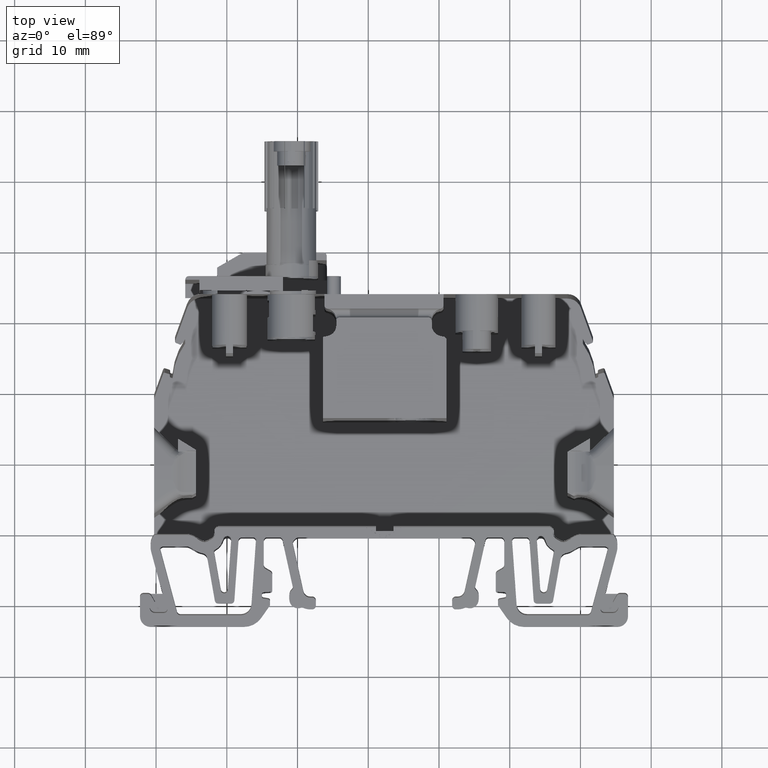
[diagram: clean part render]
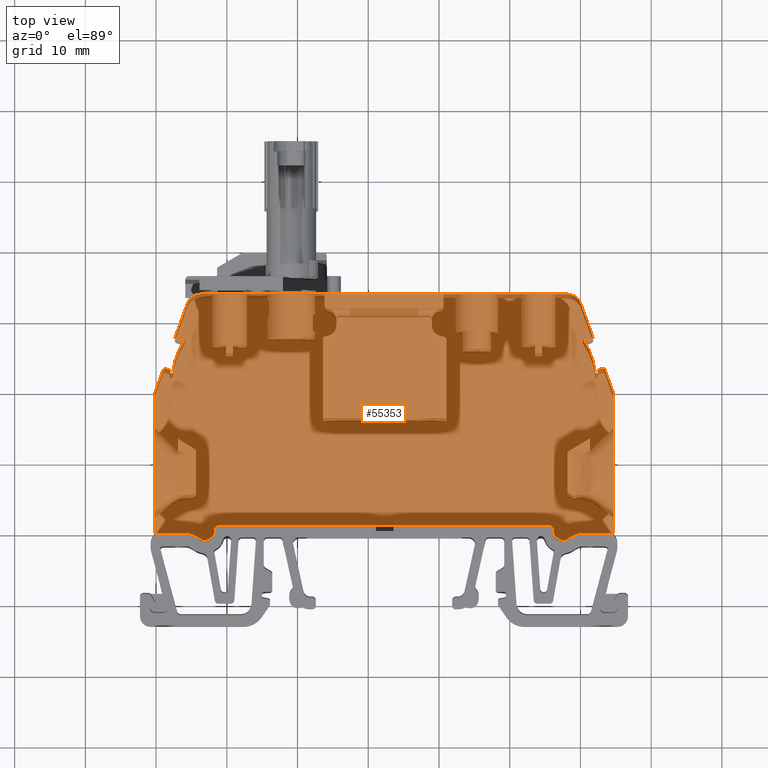
[diagram: same view with one face highlighted and labeled with its STEP entity id]
A machine part, top view. The second image highlights one B-rep face of the part: STEP entity #55353.
In plain terms, the highlighted planar face has unit normal (0, 0, -1).
Its self-contained STEP definition (entity closure, byte-faithful):
#7059 = ORIENTED_EDGE ( 'NONE', *, *, #56412, .T. ) ;
#7060 = ORIENTED_EDGE ( 'NONE', *, *, #56320, .T. ) ;
#7062 = ORIENTED_EDGE ( 'NONE', *, *, #56421, .T. ) ;
#7064 = ORIENTED_EDGE ( 'NONE', *, *, #56339, .T. ) ;
#7066 = ORIENTED_EDGE ( 'NONE', *, *, #56348, .T. ) ;
#7067 = ORIENTED_EDGE ( 'NONE', *, *, #56385, .F. ) ;
#7073 = ORIENTED_EDGE ( 'NONE', *, *, #56375, .T. ) ;
#7077 = ORIENTED_EDGE ( 'NONE', *, *, #56380, .F. ) ;
#7081 = ORIENTED_EDGE ( 'NONE', *, *, #56054, .T. ) ;
#7082 = ORIENTED_EDGE ( 'NONE', *, *, #56011, .T. ) ;
#7085 = ORIENTED_EDGE ( 'NONE', *, *, #56361, .T. ) ;
#7087 = ORIENTED_EDGE ( 'NONE', *, *, #55777, .F. ) ;
#7088 = ORIENTED_EDGE ( 'NONE', *, *, #56040, .T. ) ;
#7089 = ORIENTED_EDGE ( 'NONE', *, *, #56341, .T. ) ;
#7091 = ORIENTED_EDGE ( 'NONE', *, *, #56416, .T. ) ;
#7092 = ORIENTED_EDGE ( 'NONE', *, *, #55696, .T. ) ;
#7104 = ORIENTED_EDGE ( 'NONE', *, *, #56378, .T. ) ;
#7107 = ORIENTED_EDGE ( 'NONE', *, *, #56370, .T. ) ;
#7113 = ORIENTED_EDGE ( 'NONE', *, *, #56066, .T. ) ;
#7116 = ORIENTED_EDGE ( 'NONE', *, *, #56413, .T. ) ;
#7118 = ORIENTED_EDGE ( 'NONE', *, *, #56347, .T. ) ;
#7120 = ORIENTED_EDGE ( 'NONE', *, *, #55743, .T. ) ;
#7125 = ORIENTED_EDGE ( 'NONE', *, *, #56307, .F. ) ;
#7126 = ORIENTED_EDGE ( 'NONE', *, *, #56417, .T. ) ;
#7128 = ORIENTED_EDGE ( 'NONE', *, *, #56305, .T. ) ;
#7130 = ORIENTED_EDGE ( 'NONE', *, *, #56366, .T. ) ;
#7133 = ORIENTED_EDGE ( 'NONE', *, *, #56296, .F. ) ;
#7134 = ORIENTED_EDGE ( 'NONE', *, *, #56410, .F. ) ;
#7135 = ORIENTED_EDGE ( 'NONE', *, *, #56404, .T. ) ;
#7137 = ORIENTED_EDGE ( 'NONE', *, *, #56365, .T. ) ;
#7140 = ORIENTED_EDGE ( 'NONE', *, *, #56338, .T. ) ;
#7147 = ORIENTED_EDGE ( 'NONE', *, *, #56403, .T. ) ;
#7153 = ORIENTED_EDGE ( 'NONE', *, *, #56304, .T. ) ;
#7158 = ORIENTED_EDGE ( 'NONE', *, *, #55980, .T. ) ;
#7159 = ORIENTED_EDGE ( 'NONE', *, *, #56418, .T. ) ;
#7163 = ORIENTED_EDGE ( 'NONE', *, *, #56407, .T. ) ;
#7165 = ORIENTED_EDGE ( 'NONE', *, *, #55985, .T. ) ;
#7166 = ORIENTED_EDGE ( 'NONE', *, *, #56039, .T. ) ;
#7172 = ORIENTED_EDGE ( 'NONE', *, *, #56325, .F. ) ;
#7173 = ORIENTED_EDGE ( 'NONE', *, *, #56374, .T. ) ;
#7176 = ORIENTED_EDGE ( 'NONE', *, *, #56297, .T. ) ;
#7187 = ORIENTED_EDGE ( 'NONE', *, *, #56295, .T. ) ;
#7188 = ORIENTED_EDGE ( 'NONE', *, *, #56402, .T. ) ;
#7192 = ORIENTED_EDGE ( 'NONE', *, *, #56377, .T. ) ;
#7196 = ORIENTED_EDGE ( 'NONE', *, *, #56400, .F. ) ;
#7203 = ORIENTED_EDGE ( 'NONE', *, *, #56093, .T. ) ;
#7206 = ORIENTED_EDGE ( 'NONE', *, *, #56405, .T. ) ;
#7210 = ORIENTED_EDGE ( 'NONE', *, *, #55977, .T. ) ;
#7230 = ORIENTED_EDGE ( 'NONE', *, *, #56299, .T. ) ;
#7231 = ORIENTED_EDGE ( 'NONE', *, *, #56035, .T. ) ;
#7234 = ORIENTED_EDGE ( 'NONE', *, *, #56388, .T. ) ;
#10559 = VERTEX_POINT ( 'NONE', #46858 ) ;
#10574 = VERTEX_POINT ( 'NONE', #46841 ) ;
#10585 = VERTEX_POINT ( 'NONE', #46873 ) ;
#10627 = VERTEX_POINT ( 'NONE', #46846 ) ;
#10634 = VERTEX_POINT ( 'NONE', #46845 ) ;
#10638 = VERTEX_POINT ( 'NONE', #46843 ) ;
#10646 = VERTEX_POINT ( 'NONE', #46887 ) ;
#10649 = VERTEX_POINT ( 'NONE', #46814 ) ;
#10652 = VERTEX_POINT ( 'NONE', #46878 ) ;
#10655 = VERTEX_POINT ( 'NONE', #46859 ) ;
#10692 = VERTEX_POINT ( 'NONE', #46885 ) ;
#10700 = VERTEX_POINT ( 'NONE', #46888 ) ;
#10712 = VERTEX_POINT ( 'NONE', #46803 ) ;
#10715 = VERTEX_POINT ( 'NONE', #46889 ) ;
#10737 = VERTEX_POINT ( 'NONE', #46810 ) ;
#10750 = VERTEX_POINT ( 'NONE', #46863 ) ;
#10757 = VERTEX_POINT ( 'NONE', #46834 ) ;
#10761 = VERTEX_POINT ( 'NONE', #46805 ) ;
#10776 = VERTEX_POINT ( 'NONE', #46801 ) ;
#10787 = VERTEX_POINT ( 'NONE', #46819 ) ;
#10806 = VERTEX_POINT ( 'NONE', #46973 ) ;
#10820 = VERTEX_POINT ( 'NONE', #46944 ) ;
#10832 = VERTEX_POINT ( 'NONE', #46916 ) ;
#10869 = VERTEX_POINT ( 'NONE', #46903 ) ;
#10881 = VERTEX_POINT ( 'NONE', #46954 ) ;
#10902 = VERTEX_POINT ( 'NONE', #46906 ) ;
#10908 = VERTEX_POINT ( 'NONE', #46969 ) ;
#10918 = VERTEX_POINT ( 'NONE', #46990 ) ;
#10924 = VERTEX_POINT ( 'NONE', #46920 ) ;
#10938 = VERTEX_POINT ( 'NONE', #46924 ) ;
#10949 = VERTEX_POINT ( 'NONE', #46947 ) ;
#11040 = VERTEX_POINT ( 'NONE', #47091 ) ;
#11107 = VERTEX_POINT ( 'NONE', #47103 ) ;
#11120 = VERTEX_POINT ( 'NONE', #47069 ) ;
#16020 = ORIENTED_EDGE ( 'NONE', *, *, #56312, .T. ) ;
#16052 = ORIENTED_EDGE ( 'NONE', *, *, #56317, .T. ) ;
#16074 = ORIENTED_EDGE ( 'NONE', *, *, #56323, .T. ) ;
#16086 = ORIENTED_EDGE ( 'NONE', *, *, #56321, .F. ) ;
#16101 = ORIENTED_EDGE ( 'NONE', *, *, #56120, .T. ) ;
#16116 = ORIENTED_EDGE ( 'NONE', *, *, #56294, .T. ) ;
#16412 = CARTESIAN_POINT ( 'NONE',  ( 441.9869514033778700, 132.6659878826916100, 35.89999999999999900 ) ) ;
#16424 = CARTESIAN_POINT ( 'NONE',  ( 441.8457076652765100, 132.8586343896416800, 35.90000000000004800 ) ) ;
#16427 = CARTESIAN_POINT ( 'NONE',  ( 501.7735559405449500, 137.4437300253040300, 35.89999999999999900 ) ) ;
#16429 = CARTESIAN_POINT ( 'NONE',  ( 502.4972055876190200, 132.5112260477452000, 35.89999999999999900 ) ) ;
#16431 = CARTESIAN_POINT ( 'NONE',  ( 502.3985086091178100, 132.3702721546271400, 35.89999999999999900 ) ) ;
#16470 = CARTESIAN_POINT ( 'NONE',  ( 501.7614939674510900, 137.5121354201388900, 35.89999999999999900 ) ) ;
#16850 = CARTESIAN_POINT ( 'NONE',  ( 439.7252143684761400, 109.6896936819650000, 35.90000000000004800 ) ) ;
#16907 = CARTESIAN_POINT ( 'NONE',  ( 444.4038481496365300, 142.2237417628950900, 35.90000000000004100 ) ) ;
#16910 = CARTESIAN_POINT ( 'NONE',  ( 442.6889248981364600, 137.5121354201390000, 35.90000000000002700 ) ) ;
#16935 = CARTESIAN_POINT ( 'NONE',  ( 500.0465707159509100, 142.2237417628949700, 35.89999999999999900 ) ) ;
#16952 = CARTESIAN_POINT ( 'NONE',  ( 439.8156742988990100, 129.6181228246177000, 35.89999999999999900 ) ) ;
#16966 = CARTESIAN_POINT ( 'NONE',  ( 444.1090447752035900, 137.1677233500631700, 35.89999999999999900 ) ) ;
#16968 = CARTESIAN_POINT ( 'NONE',  ( 441.0172448106974900, 132.9193360070189800, 35.89999999999999900 ) ) ;
#16973 = CARTESIAN_POINT ( 'NONE',  ( 498.1671904468869900, 143.5396878145460000, 35.89999999999999900 ) ) ;
#16979 = CARTESIAN_POINT ( 'NONE',  ( 504.6347445666889900, 129.6181228246177600, 35.90000000000004100 ) ) ;
#16990 = CARTESIAN_POINT ( 'NONE',  ( 439.7252095132005800, 129.1050819832558100, 35.90000000000004100 ) ) ;
#16992 = CARTESIAN_POINT ( 'NONE',  ( 500.3413740903850500, 137.1677233500630000, 35.89999999999999900 ) ) ;
#16993 = CARTESIAN_POINT ( 'NONE',  ( 502.1238843569819900, 132.2703171012420000, 35.89999999999999900 ) ) ;
#17002 = CARTESIAN_POINT ( 'NONE',  ( 446.2832284187010700, 143.5396878145460300, 35.89999999999999900 ) ) ;
#17009 = CARTESIAN_POINT ( 'NONE',  ( 504.7252093648909900, 129.1050821708110200, 35.89999999999999900 ) ) ;
#17021 = CARTESIAN_POINT ( 'NONE',  ( 504.7252050386769000, 109.6896936420171900, 35.89999999999999900 ) ) ;
#17027 = CARTESIAN_POINT ( 'NONE',  ( 442.3265345086064700, 132.2703171012420000, 35.89999999999999900 ) ) ;
#17030 = CARTESIAN_POINT ( 'NONE',  ( 503.4331740548898300, 132.9193360070189000, 35.90000000000002700 ) ) ;
#36049 = CIRCLE ( 'NONE', #36051, 0.1999999999999779700 ) ;
#36051 = AXIS2_PLACEMENT_3D ( 'NONE', #92848, #92817, #92826 ) ;
#36243 = AXIS2_PLACEMENT_3D ( 'NONE', #92968, #92962, #92991 ) ;
#36257 = CIRCLE ( 'NONE', #36243, 0.1500000000000945000 ) ;
#36685 = CIRCLE ( 'NONE', #36751, 10.00000000000000900 ) ;
#36705 = CIRCLE ( 'NONE', #36715, 2.000000000000057300 ) ;
#36715 = AXIS2_PLACEMENT_3D ( 'NONE', #39559, #39535, #39527 ) ;
#36723 = VECTOR ( 'NONE', #39529, 1000.000000000000100 ) ;
#36731 = VECTOR ( 'NONE', #39582, 1000.000000000000100 ) ;
#36751 = AXIS2_PLACEMENT_3D ( 'NONE', #39688, #39655, #39661 ) ;
#36808 = VECTOR ( 'NONE', #39761, 1000.000000000000000 ) ;
#36812 = VECTOR ( 'NONE', #39754, 1000.000000000000000 ) ;
#36833 = VECTOR ( 'NONE', #39724, 1000.000000000000000 ) ;
#36835 = VECTOR ( 'NONE', #39823, 1000.000000000000100 ) ;
#36885 = AXIS2_PLACEMENT_3D ( 'NONE', #39846, #39858, #39866 ) ;
#36906 = AXIS2_PLACEMENT_3D ( 'NONE', #39881, #39904, #39906 ) ;
#36962 = CIRCLE ( 'NONE', #36906, 10.00000000000045300 ) ;
#36970 = CIRCLE ( 'NONE', #36885, 1.999999999999724200 ) ;
#37016 = VECTOR ( 'NONE', #39982, 1000.000000000000000 ) ;
#37167 = VECTOR ( 'NONE', #37970, 1000.000000000000000 ) ;
#37168 = VECTOR ( 'NONE', #38034, 1000.000000000000000 ) ;
#37176 = VECTOR ( 'NONE', #38008, 1000.000000000000000 ) ;
#37214 = VECTOR ( 'NONE', #38196, 1000.000000000000100 ) ;
#37216 = AXIS2_PLACEMENT_3D ( 'NONE', #38070, #38072, #38077 ) ;
#37219 = AXIS2_PLACEMENT_3D ( 'NONE', #38064, #38086, #38102 ) ;
#37233 = CIRCLE ( 'NONE', #37219, 2.100000000000323800 ) ;
#37235 = CIRCLE ( 'NONE', #37268, 1.499999999999890300 ) ;
#37236 = VECTOR ( 'NONE', #38197, 1000.000000000000000 ) ;
#37249 = VECTOR ( 'NONE', #38036, 1000.000000000000000 ) ;
#37250 = CIRCLE ( 'NONE', #37255, 2.100000000000656900 ) ;
#37254 = VECTOR ( 'NONE', #38230, 1000.000000000000100 ) ;
#37255 = AXIS2_PLACEMENT_3D ( 'NONE', #38029, #38047, #38042 ) ;
#37257 = VECTOR ( 'NONE', #38066, 1000.000000000000100 ) ;
#37265 = VECTOR ( 'NONE', #38134, 1000.000000000000000 ) ;
#37267 = CIRCLE ( 'NONE', #37216, 1.499999999999945800 ) ;
#37268 = AXIS2_PLACEMENT_3D ( 'NONE', #38193, #38186, #38195 ) ;
#37276 = VECTOR ( 'NONE', #38150, 1000.000000000000000 ) ;
#37277 = AXIS2_PLACEMENT_3D ( 'NONE', #38372, #38373, #38354 ) ;
#37283 = CIRCLE ( 'NONE', #37339, 0.1999999999999779700 ) ;
#37285 = AXIS2_PLACEMENT_3D ( 'NONE', #38337, #38346, #38300 ) ;
#37286 = VECTOR ( 'NONE', #38248, 1000.000000000000000 ) ;
#37287 = AXIS2_PLACEMENT_3D ( 'NONE', #38358, #38389, #38381 ) ;
#37289 = VECTOR ( 'NONE', #38395, 1000.000000000000100 ) ;
#37290 = VECTOR ( 'NONE', #38394, 1000.000000000000200 ) ;
#37292 = CIRCLE ( 'NONE', #37287, 0.1499999999997614400 ) ;
#37295 = VECTOR ( 'NONE', #38286, 999.9999999999998900 ) ;
#37296 = VECTOR ( 'NONE', #38364, 1000.000000000000100 ) ;
#37298 = CIRCLE ( 'NONE', #37306, 0.1499999999999834800 ) ;
#37300 = CIRCLE ( 'NONE', #37322, 0.1999999999997559300 ) ;
#37303 = VECTOR ( 'NONE', #38370, 1000.000000000000100 ) ;
#37304 = AXIS2_PLACEMENT_3D ( 'NONE', #38410, #38397, #38428 ) ;
#37306 = AXIS2_PLACEMENT_3D ( 'NONE', #38360, #38366, #38367 ) ;
#37307 = CIRCLE ( 'NONE', #37304, 0.2000000000001445100 ) ;
#37312 = VECTOR ( 'NONE', #38276, 1000.000000000000100 ) ;
#37318 = VECTOR ( 'NONE', #38283, 1000.000000000000100 ) ;
#37321 = VECTOR ( 'NONE', #38316, 1000.000000000000000 ) ;
#37322 = AXIS2_PLACEMENT_3D ( 'NONE', #38398, #38400, #38406 ) ;
#37324 = VECTOR ( 'NONE', #38292, 1000.000000000000200 ) ;
#37329 = CIRCLE ( 'NONE', #37277, 0.1999999999999779700 ) ;
#37334 = CIRCLE ( 'NONE', #37285, 0.1499999999997614400 ) ;
#37339 = AXIS2_PLACEMENT_3D ( 'NONE', #38379, #38347, #38375 ) ;
#37340 = VECTOR ( 'NONE', #38231, 1000.000000000000200 ) ;
#37968 = CARTESIAN_POINT ( 'NONE',  ( 448.6683679143338800, 110.7985886008791400, 35.89999999999999900 ) ) ;
#37970 = DIRECTION ( 'NONE',  ( -1.000000000000000000, 0.0000000000000000000, -0.0000000000000000000 ) ) ;
#37971 = CARTESIAN_POINT ( 'NONE',  ( 448.0248293368536000, 109.3097126272650700, 35.90000000000000600 ) ) ;
#37976 = CARTESIAN_POINT ( 'NONE',  ( 448.2254475470130000, 109.8985296204524100, 35.89999999999999900 ) ) ;
#37986 = CARTESIAN_POINT ( 'NONE',  ( 448.5122555517553500, 110.7339247430450700, 35.90000000000000600 ) ) ;
#37987 = LINE ( 'NONE', #37988, #37167 ) ;
#37988 = CARTESIAN_POINT ( 'NONE',  ( 481.7959150493850300, 109.6896936420171900, 35.89999999999999900 ) ) ;
#37990 = LINE ( 'NONE', #37976, #37176 ) ;
#37991 = CARTESIAN_POINT ( 'NONE',  ( 448.1849114839842500, 109.5873466136394800, 35.89999999999999900 ) ) ;
#37992 = CARTESIAN_POINT ( 'NONE',  ( 447.9150217157184100, 109.1999050061297300, 35.89999999999999900 ) ) ;
#37994 = CARTESIAN_POINT ( 'NONE',  ( 448.2254475470130000, 110.1985886008790200, 35.89999999999999900 ) ) ;
#37997 = CARTESIAN_POINT ( 'NONE',  ( 448.2254475470128900, 110.3556682335585900, 35.90000000000000600 ) ) ;
#37999 = CARTESIAN_POINT ( 'NONE',  ( 448.2901114048471000, 110.5117805961371600, 35.89999999999999900 ) ) ;
#38000 = CARTESIAN_POINT ( 'NONE',  ( 448.2254475470130000, 109.8985296204524100, 35.89999999999999900 ) ) ;
#38002 = CARTESIAN_POINT ( 'NONE',  ( 448.8254475470134800, 110.7985886008790000, 35.89999999999999900 ) ) ;
#38005 = CARTESIAN_POINT ( 'NONE',  ( 448.2252617162189400, 109.7376203822087200, 35.90000000000000600 ) ) ;
#38006 = CARTESIAN_POINT ( 'NONE',  ( 447.7754475470129000, 109.1191067570462300, 35.89999999999999900 ) ) ;
#38008 = DIRECTION ( 'NONE',  ( 1.850007993506319900E-013, -1.000000000000000000, -0.0000000000000000000 ) ) ;
#38027 = CARTESIAN_POINT ( 'NONE',  ( 447.1634308212534800, 108.7659734269106200, 35.90000000000000600 ) ) ;
#38029 = CARTESIAN_POINT ( 'NONE',  ( 444.3793315909559900, 107.5896937618600000, 35.89999999999999900 ) ) ;
#38031 = CARTESIAN_POINT ( 'NONE',  ( 497.9081029493523300, 108.7659757434342400, 35.90000000000000600 ) ) ;
#38032 = CARTESIAN_POINT ( 'NONE',  ( 481.7959150493850300, 110.7985886008790000, 35.89999999999999900 ) ) ;
#38033 = CARTESIAN_POINT ( 'NONE',  ( 496.6749713185751000, 109.1191067570462000, 35.90000000000005500 ) ) ;
#38034 = DIRECTION ( 'NONE',  ( -0.8660257572831008300, 0.4999993877218569800, -0.0000000000000000000 ) ) ;
#38036 = DIRECTION ( 'NONE',  ( -1.000000000000000000, 0.0000000000000000000, -0.0000000000000000000 ) ) ;
#38037 = CARTESIAN_POINT ( 'NONE',  ( 446.6926328052545000, 108.7256000827221000, 35.90000000000000600 ) ) ;
#38038 = CARTESIAN_POINT ( 'NONE',  ( 447.0131139007334000, 108.7257808765660200, 35.89999999999999900 ) ) ;
#38039 = CARTESIAN_POINT ( 'NONE',  ( 446.5426321507503100, 108.7657933854671600, 35.89999999999999900 ) ) ;
#38041 = CARTESIAN_POINT ( 'NONE',  ( 447.3028760686517000, 108.8462675888914500, 35.89999999999999900 ) ) ;
#38042 = DIRECTION ( 'NONE',  ( 1.000000000000000000, 6.608470384671483400E-015, 0.0000000000000000000 ) ) ;
#38046 = LINE ( 'NONE', #38033, #37168 ) ;
#38047 = DIRECTION ( 'NONE',  ( -0.0000000000000000000, -0.0000000000000000000, -1.000000000000000000 ) ) ;
#38051 = LINE ( 'NONE', #38032, #37249 ) ;
#38055 = CARTESIAN_POINT ( 'NONE',  ( 446.4028713854622800, 108.8462703809187500, 35.89999999999999900 ) ) ;
#38061 = CARTESIAN_POINT ( 'NONE',  ( 498.0475476677708000, 108.8462708512072200, 35.90000000000004800 ) ) ;
#38064 = CARTESIAN_POINT ( 'NONE',  ( 500.0710872746320200, 107.5896937618600000, 35.89999999999999900 ) ) ;
#38066 = DIRECTION ( 'NONE',  ( -0.8660242921353220600, -0.5000019254278069700, -0.0000000000000000000 ) ) ;
#38067 = CARTESIAN_POINT ( 'NONE',  ( 496.2653499493745800, 109.5872557200777600, 35.90000000000000600 ) ) ;
#38070 = CARTESIAN_POINT ( 'NONE',  ( 503.2252093648909900, 129.1050823633559900, 35.89999999999999900 ) ) ;
#38072 = DIRECTION ( 'NONE',  ( -0.0000000000000000000, -0.0000000000000000000, -1.000000000000000000 ) ) ;
#38073 = CARTESIAN_POINT ( 'NONE',  ( 495.7820509512544600, 110.7985886008790000, 35.90000000000000600 ) ) ;
#38077 = DIRECTION ( 'NONE',  ( 1.000000000000000000, -1.850371707708661000E-013, 0.0000000000000000000 ) ) ;
#38078 = LINE ( 'NONE', #38104, #37257 ) ;
#38081 = CARTESIAN_POINT ( 'NONE',  ( 496.2251575705100800, 109.7372557200778300, 35.89999999999999900 ) ) ;
#38086 = DIRECTION ( 'NONE',  ( -0.0000000000000000000, -0.0000000000000000000, -1.000000000000000000 ) ) ;
#38089 = CARTESIAN_POINT ( 'NONE',  ( 496.2249713185750000, 109.8985296204524100, 35.89999999999999900 ) ) ;
#38090 = CARTESIAN_POINT ( 'NONE',  ( 495.6249713185750400, 110.7985886008790000, 35.89999999999999900 ) ) ;
#38092 = CARTESIAN_POINT ( 'NONE',  ( 497.2873042229582000, 108.7657917130688800, 35.89999999999999900 ) ) ;
#38098 = CARTESIAN_POINT ( 'NONE',  ( 497.4373051448884000, 108.7255993596644100, 35.90000000000000600 ) ) ;
#38099 = CARTESIAN_POINT ( 'NONE',  ( 495.9381633138331200, 110.7339247430449100, 35.89999999999999900 ) ) ;
#38101 = CARTESIAN_POINT ( 'NONE',  ( 496.1603074607408500, 110.5117805961369700, 35.90000000000000600 ) ) ;
#38102 = DIRECTION ( 'NONE',  ( 1.000000000000000000, -8.591011500074291300E-014, 0.0000000000000000000 ) ) ;
#38104 = CARTESIAN_POINT ( 'NONE',  ( 498.0475476597340500, 108.8462708651284000, 35.90000000000005500 ) ) ;
#38106 = CARTESIAN_POINT ( 'NONE',  ( 497.1475429536653800, 108.8462678603528400, 35.90000000000001300 ) ) ;
#38108 = CARTESIAN_POINT ( 'NONE',  ( 496.6749713185751000, 109.1191067570462400, 35.90000000000001300 ) ) ;
#38109 = CARTESIAN_POINT ( 'NONE',  ( 496.5357127459684000, 109.1997223103456200, 35.90000000000000600 ) ) ;
#38110 = CARTESIAN_POINT ( 'NONE',  ( 497.7577862779500000, 108.7257822127724600, 35.89999999999999900 ) ) ;
#38112 = CARTESIAN_POINT ( 'NONE',  ( 496.4257469609634100, 109.3098035208268000, 35.89999999999999900 ) ) ;
#38122 = CARTESIAN_POINT ( 'NONE',  ( 496.2249713185750000, 110.1985886008790200, 35.89999999999999900 ) ) ;
#38127 = LINE ( 'NONE', #38131, #37276 ) ;
#38131 = CARTESIAN_POINT ( 'NONE',  ( 445.4293347377645200, 109.4083452929940300, 35.89999999999999900 ) ) ;
#38134 = DIRECTION ( 'NONE',  ( 0.0000000000000000000, 1.000000000000000000, -0.0000000000000000000 ) ) ;
#38138 = CARTESIAN_POINT ( 'NONE',  ( 496.2249713185750000, 110.1985886008790200, 35.89999999999999900 ) ) ;
#38147 = CARTESIAN_POINT ( 'NONE',  ( 496.2249713185750000, 110.3556682335585200, 35.89999999999999900 ) ) ;
#38149 = LINE ( 'NONE', #38138, #37265 ) ;
#38150 = DIRECTION ( 'NONE',  ( -0.8660241491388746000, 0.5000021731035658700, -0.0000000000000000000 ) ) ;
#38163 = CARTESIAN_POINT ( 'NONE',  ( 447.3028760807075100, 108.8462675680095900, 35.89999999999999900 ) ) ;
#38165 = CARTESIAN_POINT ( 'NONE',  ( 481.7959150493850300, 109.6896937618606000, 35.89999999999999900 ) ) ;
#38167 = LINE ( 'NONE', #38163, #37214 ) ;
#38168 = LINE ( 'NONE', #38165, #37236 ) ;
#38186 = DIRECTION ( 'NONE',  ( -0.0000000000000000000, -0.0000000000000000000, -1.000000000000000000 ) ) ;
#38193 = CARTESIAN_POINT ( 'NONE',  ( 441.2252095006970200, 129.1050823633559900, 35.89999999999999900 ) ) ;
#38195 = DIRECTION ( 'NONE',  ( 1.000000000000000000, -1.850371707708729500E-014, 0.0000000000000000000 ) ) ;
#38196 = DIRECTION ( 'NONE',  ( -0.8660254627010567400, -0.4999998979534099300, -0.0000000000000000000 ) ) ;
#38197 = DIRECTION ( 'NONE',  ( -1.000000000000000000, 0.0000000000000000000, -0.0000000000000000000 ) ) ;
#38209 = CARTESIAN_POINT ( 'NONE',  ( 443.6094294760432600, 137.0896025311120400, 35.90000000000000600 ) ) ;
#38220 = CARTESIAN_POINT ( 'NONE',  ( 443.6296331466309700, 137.1436008295233900, 35.90000000000004800 ) ) ;
#38223 = LINE ( 'NONE', #38247, #37340 ) ;
#38229 = LINE ( 'NONE', #38233, #37254 ) ;
#38230 = DIRECTION ( 'NONE',  ( -0.9396926207857007100, 0.3420201433262392600, 0.0000000000000000000 ) ) ;
#38231 = DIRECTION ( 'NONE',  ( 0.9396926207860015800, -0.3420201433254125300, 0.0000000000000000000 ) ) ;
#38233 = CARTESIAN_POINT ( 'NONE',  ( 444.1090447752035300, 137.1677233500632000, 35.89999999999999900 ) ) ;
#38247 = CARTESIAN_POINT ( 'NONE',  ( 442.0519102564695100, 132.3702721546274000, 35.89999999999999900 ) ) ;
#38248 = DIRECTION ( 'NONE',  ( -0.3420201433108998600, 0.9396926207912837900, -0.0000000000000000000 ) ) ;
#38250 = LINE ( 'NONE', #38252, #37286 ) ;
#38252 = CARTESIAN_POINT ( 'NONE',  ( 500.8082554045290100, 137.1780275854749800, 35.89999999999999900 ) ) ;
#38253 = CARTESIAN_POINT ( 'NONE',  ( 443.5728208420430300, 137.0507986096723100, 35.89999999999999900 ) ) ;
#38254 = LINE ( 'NONE', #38258, #37295 ) ;
#38255 = CARTESIAN_POINT ( 'NONE',  ( 502.1238843569819900, 132.2703171012420000, 35.89999999999999900 ) ) ;
#38258 = CARTESIAN_POINT ( 'NONE',  ( 500.6159984899119900, 137.2676784570948000, 35.89999999999999900 ) ) ;
#38260 = CARTESIAN_POINT ( 'NONE',  ( 442.8003196660604900, 137.2589568413610000, 35.89999999999999900 ) ) ;
#38262 = CARTESIAN_POINT ( 'NONE',  ( 502.4941288583460700, 132.5461283390546000, 35.89999999999999900 ) ) ;
#38263 = CARTESIAN_POINT ( 'NONE',  ( 502.4972055876190200, 132.5112260477452000, 35.89999999999999900 ) ) ;
#38264 = CARTESIAN_POINT ( 'NONE',  ( 443.4166259735287100, 137.0042149392363900, 35.89999999999999900 ) ) ;
#38265 = LINE ( 'NONE', #38255, #37324 ) ;
#38270 = CARTESIAN_POINT ( 'NONE',  ( 443.6296331466310200, 137.1436008295233900, 35.90000000000005500 ) ) ;
#38271 = CARTESIAN_POINT ( 'NONE',  ( 502.4972055876190200, 132.5286793402651400, 35.89999999999999900 ) ) ;
#38276 = DIRECTION ( 'NONE',  ( -0.9238659197144130100, 0.3827162949107885100, -0.0000000000000000000 ) ) ;
#38277 = CARTESIAN_POINT ( 'NONE',  ( 443.4695127183794600, 137.0047904559420700, 35.90000000000000600 ) ) ;
#38279 = CARTESIAN_POINT ( 'NONE',  ( 502.4881594807369000, 132.5625290692440200, 35.90000000000001300 ) ) ;
#38282 = LINE ( 'NONE', #38260, #37312 ) ;
#38283 = DIRECTION ( 'NONE',  ( -0.3420201433023855000, -0.9396926207943827600, -0.0000000000000000000 ) ) ;
#38286 = DIRECTION ( 'NONE',  ( -0.9396926207850649900, -0.3420201433279862500, 0.0000000000000000000 ) ) ;
#38288 = LINE ( 'NONE', #38270, #37318 ) ;
#38292 = DIRECTION ( 'NONE',  ( 0.9396926207858459200, 0.3420201433258405200, 0.0000000000000000000 ) ) ;
#38295 = CARTESIAN_POINT ( 'NONE',  ( 443.3625065456590200, 137.0260679826899900, 35.89999999999999900 ) ) ;
#38300 = DIRECTION ( 'NONE',  ( 1.000000000000000000, 1.850371707711537200E-013, 0.0000000000000000000 ) ) ;
#38312 = CARTESIAN_POINT ( 'NONE',  ( 501.0879123199289900, 137.0260679826899900, 35.89999999999999900 ) ) ;
#38316 = DIRECTION ( 'NONE',  ( -0.9238659197143411800, -0.3827162949109620400, -0.0000000000000000000 ) ) ;
#38337 = CARTESIAN_POINT ( 'NONE',  ( 500.6673015114110400, 137.1267245639772100, 35.89999999999999900 ) ) ;
#38339 = LINE ( 'NONE', #38312, #37321 ) ;
#38346 = DIRECTION ( 'NONE',  ( -0.0000000000000000000, -0.0000000000000000000, -1.000000000000000000 ) ) ;
#38347 = DIRECTION ( 'NONE',  ( -0.0000000000000000000, -0.0000000000000000000, -1.000000000000000000 ) ) ;
#38350 = CARTESIAN_POINT ( 'NONE',  ( 441.9868220230814600, 132.6422653291934100, 35.89999999999999900 ) ) ;
#38354 = DIRECTION ( 'NONE',  ( 1.000000000000000000, 0.0000000000000000000, 0.0000000000000000000 ) ) ;
#38358 = CARTESIAN_POINT ( 'NONE',  ( 443.7831173541765100, 137.1267245639772100, 35.89999999999999900 ) ) ;
#38360 = CARTESIAN_POINT ( 'NONE',  ( 442.1032132779684500, 132.5112260477452000, 35.89999999999999900 ) ) ;
#38361 = CARTESIAN_POINT ( 'NONE',  ( 441.9827613262144200, 132.6192359728762000, 35.89999999999999900 ) ) ;
#38363 = CARTESIAN_POINT ( 'NONE',  ( 441.8457076652764500, 132.8586343896417900, 35.90000000000005500 ) ) ;
#38364 = DIRECTION ( 'NONE',  ( 0.9536955789618091200, -0.3007735737539115100, -0.0000000000000000000 ) ) ;
#38365 = CARTESIAN_POINT ( 'NONE',  ( 441.9869514033778700, 132.6659878826916100, 35.89999999999999900 ) ) ;
#38366 = DIRECTION ( 'NONE',  ( -0.0000000000000000000, -0.0000000000000000000, -1.000000000000000000 ) ) ;
#38367 = DIRECTION ( 'NONE',  ( 1.000000000000000000, -1.850371707708798000E-013, 0.0000000000000000000 ) ) ;
#38369 = CARTESIAN_POINT ( 'NONE',  ( 502.4756495528110900, 132.5968998137400700, 35.90000000000001300 ) ) ;
#38370 = DIRECTION ( 'NONE',  ( 0.9536955789618815100, 0.3007735737536818000, -0.0000000000000000000 ) ) ;
#38371 = CARTESIAN_POINT ( 'NONE',  ( 502.4564184056822000, 132.6512475812311600, 35.90000000000000600 ) ) ;
#38372 = CARTESIAN_POINT ( 'NONE',  ( 501.5735559405449600, 137.4437300253040300, 35.89999999999999900 ) ) ;
#38373 = DIRECTION ( 'NONE',  ( -0.0000000000000000000, -0.0000000000000000000, -1.000000000000000000 ) ) ;
#38374 = LINE ( 'NONE', #38390, #37303 ) ;
#38375 = DIRECTION ( 'NONE',  ( 1.000000000000000000, -1.387778780781598400E-013, 0.0000000000000000000 ) ) ;
#38379 = CARTESIAN_POINT ( 'NONE',  ( 441.2051828376039600, 132.8509306121840400, 35.89999999999999900 ) ) ;
#38380 = LINE ( 'NONE', #38363, #37296 ) ;
#38381 = DIRECTION ( 'NONE',  ( 1.000000000000000000, 3.700743415423074400E-013, 0.0000000000000000000 ) ) ;
#38382 = CARTESIAN_POINT ( 'NONE',  ( 441.9747693127765200, 132.5968998137400100, 35.89999999999999900 ) ) ;
#38389 = DIRECTION ( 'NONE',  ( -0.0000000000000000000, -0.0000000000000000000, -1.000000000000000000 ) ) ;
#38390 = CARTESIAN_POINT ( 'NONE',  ( 503.1850813132330100, 133.0416697279762000, 35.89999999999999900 ) ) ;
#38394 = DIRECTION ( 'NONE',  ( -0.3420201433202184600, 0.9396926207878920600, -0.0000000000000000000 ) ) ;
#38395 = DIRECTION ( 'NONE',  ( -0.3420201433215583300, -0.9396926207874044500, -0.0000000000000000000 ) ) ;
#38397 = DIRECTION ( 'NONE',  ( -0.0000000000000000000, -0.0000000000000000000, -1.000000000000000000 ) ) ;
#38398 = CARTESIAN_POINT ( 'NONE',  ( 503.2452360279839900, 132.8509306121840400, 35.89999999999999900 ) ) ;
#38400 = DIRECTION ( 'NONE',  ( -0.0000000000000000000, -0.0000000000000000000, -1.000000000000000000 ) ) ;
#38401 = CARTESIAN_POINT ( 'NONE',  ( 501.0879123199289900, 137.0260679826900200, 35.89999999999999900 ) ) ;
#38403 = CARTESIAN_POINT ( 'NONE',  ( 441.9622593848504800, 132.5625290692440200, 35.89999999999999900 ) ) ;
#38406 = DIRECTION ( 'NONE',  ( 1.000000000000000000, -8.326672684698835100E-013, 0.0000000000000000000 ) ) ;
#38407 = CARTESIAN_POINT ( 'NONE',  ( 501.0344519640958100, 137.0044810678783400, 35.90000000000000600 ) ) ;
#38408 = CARTESIAN_POINT ( 'NONE',  ( 500.8773939206946600, 137.0503347282855800, 35.90000000000000600 ) ) ;
#38409 = CARTESIAN_POINT ( 'NONE',  ( 502.5090740397363300, 132.8061460575518400, 35.90000000000000600 ) ) ;
#38410 = CARTESIAN_POINT ( 'NONE',  ( 442.8768629250429900, 137.4437300253040300, 35.89999999999999900 ) ) ;
#38412 = CARTESIAN_POINT ( 'NONE',  ( 500.8207857189570400, 137.1436008295235900, 35.89999999999999900 ) ) ;
#38415 = LINE ( 'NONE', #38422, #37290 ) ;
#38418 = LINE ( 'NONE', #38403, #37289 ) ;
#38419 = CARTESIAN_POINT ( 'NONE',  ( 500.9811102500586300, 137.0052543373287200, 35.89999999999999900 ) ) ;
#38422 = CARTESIAN_POINT ( 'NONE',  ( 502.4756495528109800, 132.5968998137400100, 35.90000000000005500 ) ) ;
#38428 = DIRECTION ( 'NONE',  ( 1.000000000000000000, -2.775557561560886000E-013, 0.0000000000000000000 ) ) ;
#38429 = CARTESIAN_POINT ( 'NONE',  ( 502.5492124418335000, 132.8405829338387300, 35.89999999999999900 ) ) ;
#38430 = CARTESIAN_POINT ( 'NONE',  ( 502.6047112003120100, 132.8586343896420200, 35.89999999999999900 ) ) ;
#38434 = CARTESIAN_POINT ( 'NONE',  ( 502.4595179483050100, 132.7045014640110900, 35.89999999999999900 ) ) ;
#38436 = CARTESIAN_POINT ( 'NONE',  ( 500.8412384652215200, 137.0889368271910500, 35.89999999999999900 ) ) ;
#39524 = CARTESIAN_POINT ( 'NONE',  ( 439.7252137827740100, 112.0318129841890000, 35.90000000000005500 ) ) ;
#39527 = DIRECTION ( 'NONE',  ( 1.000000000000000000, -4.163336342344217800E-014, 0.0000000000000000000 ) ) ;
#39529 = DIRECTION ( 'NONE',  ( -2.500735734929408900E-007, 0.9999999999999686900, -0.0000000000000000000 ) ) ;
#39535 = DIRECTION ( 'NONE',  ( -0.0000000000000000000, -0.0000000000000000000, -1.000000000000000000 ) ) ;
#39552 = LINE ( 'NONE', #39524, #36723 ) ;
#39559 = CARTESIAN_POINT ( 'NONE',  ( 446.2832284187010700, 141.5396878145460000, 35.89999999999999900 ) ) ;
#39572 = CARTESIAN_POINT ( 'NONE',  ( 444.4038481496365300, 142.2237417628949700, 35.90000000000005500 ) ) ;
#39582 = DIRECTION ( 'NONE',  ( 0.3420269741745394800, 0.9396901345321280200, -0.0000000000000000000 ) ) ;
#39592 = LINE ( 'NONE', #39572, #36731 ) ;
#39655 = DIRECTION ( 'NONE',  ( -0.0000000000000000000, -0.0000000000000000000, -1.000000000000000000 ) ) ;
#39661 = DIRECTION ( 'NONE',  ( 1.000000000000000000, 0.0000000000000000000, 0.0000000000000000000 ) ) ;
#39688 = CARTESIAN_POINT ( 'NONE',  ( 452.2900591060430300, 131.4169838742566000, 35.89999999999999900 ) ) ;
#39699 = CARTESIAN_POINT ( 'NONE',  ( 441.0172448106974900, 132.9193360070189800, 35.89999999999999900 ) ) ;
#39702 = LINE ( 'NONE', #39773, #36808 ) ;
#39722 = LINE ( 'NONE', #39699, #36833 ) ;
#39724 = DIRECTION ( 'NONE',  ( 0.3420269741745310400, 0.9396901345321311300, -0.0000000000000000000 ) ) ;
#39750 = LINE ( 'NONE', #39775, #36812 ) ;
#39754 = DIRECTION ( 'NONE',  ( 0.3420269741745725100, -0.9396901345321160300, -0.0000000000000000000 ) ) ;
#39761 = DIRECTION ( 'NONE',  ( 1.000000000000000000, 0.0000000000000000000, -0.0000000000000000000 ) ) ;
#39770 = LINE ( 'NONE', #39805, #36835 ) ;
#39773 = CARTESIAN_POINT ( 'NONE',  ( 447.3028760807075100, 143.5396878145460000, 35.89999999999999900 ) ) ;
#39775 = CARTESIAN_POINT ( 'NONE',  ( 501.7614939674509700, 137.5121354201390000, 35.89999999999999900 ) ) ;
#39805 = CARTESIAN_POINT ( 'NONE',  ( 504.6347445666889900, 129.6181228246176100, 35.90000000000005500 ) ) ;
#39823 = DIRECTION ( 'NONE',  ( 0.3420269741746871400, -0.9396901345320742800, -0.0000000000000000000 ) ) ;
#39846 = CARTESIAN_POINT ( 'NONE',  ( 498.1671904468869900, 141.5396878145460000, 35.89999999999999900 ) ) ;
#39858 = DIRECTION ( 'NONE',  ( -0.0000000000000000000, -0.0000000000000000000, -1.000000000000000000 ) ) ;
#39866 = DIRECTION ( 'NONE',  ( 1.000000000000000000, -6.938893903908185100E-014, 0.0000000000000000000 ) ) ;
#39881 = CARTESIAN_POINT ( 'NONE',  ( 492.1603597595449700, 131.4169838742566000, 35.89999999999999900 ) ) ;
#39904 = DIRECTION ( 'NONE',  ( -0.0000000000000000000, -0.0000000000000000000, -1.000000000000000000 ) ) ;
#39906 = DIRECTION ( 'NONE',  ( 1.000000000000000000, -5.551115123125531100E-015, 0.0000000000000000000 ) ) ;
#39982 = DIRECTION ( 'NONE',  ( -0.0000000000000000000, -1.000000000000000000, -0.0000000000000000000 ) ) ;
#40013 = LINE ( 'NONE', #40014, #37016 ) ;
#40014 = CARTESIAN_POINT ( 'NONE',  ( 504.7252093648909900, 125.2260681164130200, 35.89999999999999900 ) ) ;
#44922 = AXIS2_PLACEMENT_3D ( 'NONE', #52532, #52563, #52526 ) ;
#46801 = CARTESIAN_POINT ( 'NONE',  ( 443.6421634610581500, 137.1780275854737000, 35.89999999999999900 ) ) ;
#46803 = CARTESIAN_POINT ( 'NONE',  ( 443.8344203756754500, 137.2676784570948000, 35.89999999999999100 ) ) ;
#46805 = CARTESIAN_POINT ( 'NONE',  ( 442.0519102564696300, 132.3702721546273700, 35.89999999999999900 ) ) ;
#46810 = CARTESIAN_POINT ( 'NONE',  ( 495.6249713185750400, 110.7985886008790000, 35.89999999999999900 ) ) ;
#46814 = CARTESIAN_POINT ( 'NONE',  ( 441.9622593848504300, 132.5625290692437100, 35.89999999999999900 ) ) ;
#46819 = CARTESIAN_POINT ( 'NONE',  ( 447.3028760686517000, 108.8462675888914500, 35.89999999999999900 ) ) ;
#46834 = CARTESIAN_POINT ( 'NONE',  ( 441.2653375523546500, 133.0416697279764000, 35.89999999999999900 ) ) ;
#46841 = CARTESIAN_POINT ( 'NONE',  ( 445.4293354461190700, 109.4083448840228200, 35.89999999999999900 ) ) ;
#46843 = CARTESIAN_POINT ( 'NONE',  ( 448.2254475470130000, 109.8985296204524100, 35.89999999999999900 ) ) ;
#46845 = CARTESIAN_POINT ( 'NONE',  ( 447.7754475470129000, 109.1191067570462300, 35.89999999999999900 ) ) ;
#46846 = CARTESIAN_POINT ( 'NONE',  ( 500.0710872759195200, 109.6896937019386900, 35.89999999999999900 ) ) ;
#46858 = CARTESIAN_POINT ( 'NONE',  ( 441.9747693127765200, 132.5968998137400100, 35.89999999999999900 ) ) ;
#46859 = CARTESIAN_POINT ( 'NONE',  ( 448.2254475470130000, 110.1985886008790200, 35.89999999999999900 ) ) ;
#46863 = CARTESIAN_POINT ( 'NONE',  ( 446.4028713854622800, 108.8462703809187500, 35.89999999999999900 ) ) ;
#46873 = CARTESIAN_POINT ( 'NONE',  ( 500.6159984899118700, 137.2676784570948000, 35.89999999999999900 ) ) ;
#46878 = CARTESIAN_POINT ( 'NONE',  ( 501.6500991995270600, 137.2589568413610600, 35.89999999999999900 ) ) ;
#46885 = CARTESIAN_POINT ( 'NONE',  ( 497.1475429536653800, 108.8462678603528400, 35.90000000000001300 ) ) ;
#46887 = CARTESIAN_POINT ( 'NONE',  ( 496.2249713185750000, 109.8985296204524100, 35.89999999999999900 ) ) ;
#46888 = CARTESIAN_POINT ( 'NONE',  ( 448.8254475470134800, 110.7985886008790000, 35.89999999999999900 ) ) ;
#46889 = CARTESIAN_POINT ( 'NONE',  ( 496.2249713185750000, 110.1985886008790200, 35.89999999999999900 ) ) ;
#46903 = CARTESIAN_POINT ( 'NONE',  ( 499.0210836993428500, 109.4083450456085100, 35.90000000000002700 ) ) ;
#46906 = CARTESIAN_POINT ( 'NONE',  ( 443.6296331466309700, 137.1436008295233900, 35.90000000000004800 ) ) ;
#46916 = CARTESIAN_POINT ( 'NONE',  ( 502.4881594807369000, 132.5625290692440200, 35.90000000000001300 ) ) ;
#46920 = CARTESIAN_POINT ( 'NONE',  ( 502.4756495528110900, 132.5968998137400700, 35.90000000000001300 ) ) ;
#46924 = CARTESIAN_POINT ( 'NONE',  ( 444.3793315909559900, 109.6896937618606000, 35.89999999999999900 ) ) ;
#46944 = CARTESIAN_POINT ( 'NONE',  ( 442.8003196660606000, 137.2589568413609700, 35.89999999999999900 ) ) ;
#46947 = CARTESIAN_POINT ( 'NONE',  ( 501.0879123199289900, 137.0260679826900200, 35.89999999999999900 ) ) ;
#46954 = CARTESIAN_POINT ( 'NONE',  ( 500.8207857189570400, 137.1436008295235900, 35.89999999999999900 ) ) ;
#46969 = CARTESIAN_POINT ( 'NONE',  ( 443.3625065456590200, 137.0260679826899900, 35.89999999999999900 ) ) ;
#46973 = CARTESIAN_POINT ( 'NONE',  ( 498.0475476677708000, 108.8462708512072200, 35.90000000000004800 ) ) ;
#46990 = CARTESIAN_POINT ( 'NONE',  ( 496.6749713185751000, 109.1191067570462400, 35.90000000000001300 ) ) ;
#47069 = CARTESIAN_POINT ( 'NONE',  ( 500.8082554045292300, 137.1780275854743800, 35.89999999999999900 ) ) ;
#47091 = CARTESIAN_POINT ( 'NONE',  ( 502.6047112003120100, 132.8586343896420200, 35.89999999999999900 ) ) ;
#47103 = CARTESIAN_POINT ( 'NONE',  ( 503.1850813132331300, 133.0416697279761700, 35.89999999999999900 ) ) ;
#52526 = DIRECTION ( 'NONE',  ( -1.000000000000000000, 0.0000000000000000000, -0.0000000000000000000 ) ) ;
#52532 = CARTESIAN_POINT ( 'NONE',  ( 481.7959150493850300, 122.7744453313896000, 35.89999999999999900 ) ) ;
#52535 = PLANE ( 'NONE',  #44922 ) ;
#52536 = FACE_OUTER_BOUND ( 'NONE', #89793, .T. ) ;
#52563 = DIRECTION ( 'NONE',  ( 0.0000000000000000000, 0.0000000000000000000, -1.000000000000000000 ) ) ;
#55353 = ADVANCED_FACE ( 'NONE', ( #52536 ), #52535, .T. ) ;
#55696 = EDGE_CURVE ( 'NONE', #66426, #66411, #70864, .T. ) ;
#55743 = EDGE_CURVE ( 'NONE', #66410, #66392, #36049, .T. ) ;
#55777 = EDGE_CURVE ( 'NONE', #66428, #66421, #36257, .T. ) ;
#55977 = EDGE_CURVE ( 'NONE', #66684, #66756, #36705, .T. ) ;
#55980 = EDGE_CURVE ( 'NONE', #66647, #66696, #39552, .T. ) ;
#55985 = EDGE_CURVE ( 'NONE', #66689, #66684, #39592, .T. ) ;
#56011 = EDGE_CURVE ( 'NONE', #66762, #66748, #36685, .T. ) ;
#56035 = EDGE_CURVE ( 'NONE', #66716, #66739, #39722, .T. ) ;
#56039 = EDGE_CURVE ( 'NONE', #66756, #66730, #39702, .T. ) ;
#56040 = EDGE_CURVE ( 'NONE', #66729, #66410, #39750, .T. ) ;
#56054 = EDGE_CURVE ( 'NONE', #66794, #66753, #39770, .T. ) ;
#56066 = EDGE_CURVE ( 'NONE', #66730, #66729, #36970, .T. ) ;
#56093 = EDGE_CURVE ( 'NONE', #66719, #66709, #36962, .T. ) ;
#56120 = EDGE_CURVE ( 'NONE', #66778, #66820, #40013, .T. ) ;
#56294 = EDGE_CURVE ( 'NONE', #66820, #10627, #37987, .T. ) ;
#56295 = EDGE_CURVE ( 'NONE', #10655, #10638, #37990, .T. ) ;
#56296 = EDGE_CURVE ( 'NONE', #10655, #10700, #71047, .T. ) ;
#56297 = EDGE_CURVE ( 'NONE', #10638, #10634, #71132, .T. ) ;
#56299 = EDGE_CURVE ( 'NONE', #10692, #10918, #38046, .T. ) ;
#56304 = EDGE_CURVE ( 'NONE', #10787, #10750, #71135, .T. ) ;
#56305 = EDGE_CURVE ( 'NONE', #10737, #10700, #38051, .T. ) ;
#56307 = EDGE_CURVE ( 'NONE', #10938, #10574, #37250, .T. ) ;
#56312 = EDGE_CURVE ( 'NONE', #10806, #10692, #71010, .T. ) ;
#56317 = EDGE_CURVE ( 'NONE', #10869, #10806, #38078, .T. ) ;
#56320 = EDGE_CURVE ( 'NONE', #10918, #10646, #71073, .T. ) ;
#56321 = EDGE_CURVE ( 'NONE', #10869, #10627, #37233, .T. ) ;
#56323 = EDGE_CURVE ( 'NONE', #66753, #66778, #37267, .T. ) ;
#56325 = EDGE_CURVE ( 'NONE', #10737, #10715, #71061, .T. ) ;
#56338 = EDGE_CURVE ( 'NONE', #10646, #10715, #38149, .T. ) ;
#56339 = EDGE_CURVE ( 'NONE', #10750, #10574, #38127, .T. ) ;
#56341 = EDGE_CURVE ( 'NONE', #66696, #66716, #37235, .T. ) ;
#56347 = EDGE_CURVE ( 'NONE', #10634, #10787, #38167, .T. ) ;
#56348 = EDGE_CURVE ( 'NONE', #10938, #66647, #38168, .T. ) ;
#56361 = EDGE_CURVE ( 'NONE', #66748, #10712, #38229, .T. ) ;
#56365 = EDGE_CURVE ( 'NONE', #10761, #66762, #38223, .T. ) ;
#56366 = EDGE_CURVE ( 'NONE', #10881, #11120, #38250, .T. ) ;
#56370 = EDGE_CURVE ( 'NONE', #10902, #10908, #71039, .T. ) ;
#56374 = EDGE_CURVE ( 'NONE', #10585, #66719, #38254, .T. ) ;
#56375 = EDGE_CURVE ( 'NONE', #10776, #10902, #38288, .T. ) ;
#56377 = EDGE_CURVE ( 'NONE', #10908, #10820, #38282, .T. ) ;
#56378 = EDGE_CURVE ( 'NONE', #66709, #66421, #38265, .T. ) ;
#56380 = EDGE_CURVE ( 'NONE', #10832, #66428, #71101, .T. ) ;
#56385 = EDGE_CURVE ( 'NONE', #10585, #11120, #37334, .T. ) ;
#56388 = EDGE_CURVE ( 'NONE', #10652, #10949, #38339, .T. ) ;
#56400 = EDGE_CURVE ( 'NONE', #10776, #10712, #37292, .T. ) ;
#56402 = EDGE_CURVE ( 'NONE', #66392, #10652, #37329, .T. ) ;
#56403 = EDGE_CURVE ( 'NONE', #66411, #10559, #71016, .T. ) ;
#56404 = EDGE_CURVE ( 'NONE', #66739, #10757, #37283, .T. ) ;
#56405 = EDGE_CURVE ( 'NONE', #10757, #66426, #38380, .T. ) ;
#56407 = EDGE_CURVE ( 'NONE', #11040, #11107, #38374, .T. ) ;
#56410 = EDGE_CURVE ( 'NONE', #10761, #10649, #37298, .T. ) ;
#56412 = EDGE_CURVE ( 'NONE', #10832, #10924, #38415, .T. ) ;
#56413 = EDGE_CURVE ( 'NONE', #10924, #11040, #71067, .T. ) ;
#56416 = EDGE_CURVE ( 'NONE', #10820, #66689, #37307, .T. ) ;
#56417 = EDGE_CURVE ( 'NONE', #10559, #10649, #38418, .T. ) ;
#56418 = EDGE_CURVE ( 'NONE', #11107, #66794, #37300, .T. ) ;
#56421 = EDGE_CURVE ( 'NONE', #10949, #10881, #70973, .T. ) ;
#66392 = VERTEX_POINT ( 'NONE', #16427 ) ;
#66410 = VERTEX_POINT ( 'NONE', #16470 ) ;
#66411 = VERTEX_POINT ( 'NONE', #16412 ) ;
#66421 = VERTEX_POINT ( 'NONE', #16431 ) ;
#66426 = VERTEX_POINT ( 'NONE', #16424 ) ;
#66428 = VERTEX_POINT ( 'NONE', #16429 ) ;
#66647 = VERTEX_POINT ( 'NONE', #16850 ) ;
#66684 = VERTEX_POINT ( 'NONE', #16907 ) ;
#66689 = VERTEX_POINT ( 'NONE', #16910 ) ;
#66696 = VERTEX_POINT ( 'NONE', #16990 ) ;
#66709 = VERTEX_POINT ( 'NONE', #16993 ) ;
#66716 = VERTEX_POINT ( 'NONE', #16952 ) ;
#66719 = VERTEX_POINT ( 'NONE', #16992 ) ;
#66729 = VERTEX_POINT ( 'NONE', #16935 ) ;
#66730 = VERTEX_POINT ( 'NONE', #16973 ) ;
#66739 = VERTEX_POINT ( 'NONE', #16968 ) ;
#66748 = VERTEX_POINT ( 'NONE', #16966 ) ;
#66753 = VERTEX_POINT ( 'NONE', #16979 ) ;
#66756 = VERTEX_POINT ( 'NONE', #17002 ) ;
#66762 = VERTEX_POINT ( 'NONE', #17027 ) ;
#66778 = VERTEX_POINT ( 'NONE', #17009 ) ;
#66794 = VERTEX_POINT ( 'NONE', #17030 ) ;
#66820 = VERTEX_POINT ( 'NONE', #17021 ) ;
#70864 = B_SPLINE_CURVE_WITH_KNOTS ( 'NONE', 3,
 ( #92704, #92697, #92709, #92712 ),
 .UNSPECIFIED., .F., .F.,
 ( 4, 4 ),
 ( 0.0000000000000000000, 1.000000000000000000 ),
 .UNSPECIFIED. ) ;
#70973 = B_SPLINE_CURVE_WITH_KNOTS ( 'NONE', 3,
 ( #38401, #38407, #38419, #38408, #38436, #38412 ),
 .UNSPECIFIED., .F., .F.,
 ( 4, 2, 4 ),
 ( 0.0000000000000000000, 0.5000000000000000000, 1.000000000000000000 ),
 .UNSPECIFIED. ) ;
#71010 = B_SPLINE_CURVE_WITH_KNOTS ( 'NONE', 3,
 ( #38061, #38031, #38110, #38098, #38092, #38106 ),
 .UNSPECIFIED., .F., .F.,
 ( 4, 2, 4 ),
 ( 0.0000000000000000000, 0.5000000000000000000, 1.000000000000000000 ),
 .UNSPECIFIED. ) ;
#71016 = B_SPLINE_CURVE_WITH_KNOTS ( 'NONE', 3,
 ( #38365, #38350, #38361, #38382 ),
 .UNSPECIFIED., .F., .F.,
 ( 4, 4 ),
 ( 0.0000000000000000000, 1.000000000000000000 ),
 .UNSPECIFIED. ) ;
#71039 = B_SPLINE_CURVE_WITH_KNOTS ( 'NONE', 3,
 ( #38220, #38209, #38253, #38277, #38264, #38295 ),
 .UNSPECIFIED., .F., .F.,
 ( 4, 2, 4 ),
 ( 0.0000000000000000000, 0.5000000000000000000, 1.000000000000000000 ),
 .UNSPECIFIED. ) ;
#71047 = B_SPLINE_CURVE_WITH_KNOTS ( 'NONE', 3,
 ( #37994, #37997, #37999, #37986, #37968, #38002 ),
 .UNSPECIFIED., .F., .F.,
 ( 4, 2, 4 ),
 ( 0.0000000000000000000, 0.5000000000000000000, 1.000000000000000000 ),
 .UNSPECIFIED. ) ;
#71061 = B_SPLINE_CURVE_WITH_KNOTS ( 'NONE', 3,
 ( #38090, #38073, #38099, #38101, #38147, #38122 ),
 .UNSPECIFIED., .F., .F.,
 ( 4, 2, 4 ),
 ( 0.0000000000000000000, 0.5000000000000000000, 1.000000000000000000 ),
 .UNSPECIFIED. ) ;
#71067 = B_SPLINE_CURVE_WITH_KNOTS ( 'NONE', 3,
 ( #38369, #38371, #38434, #38409, #38429, #38430 ),
 .UNSPECIFIED., .F., .F.,
 ( 4, 2, 4 ),
 ( 0.0000000000000000000, 0.5000000000000000000, 1.000000000000000000 ),
 .UNSPECIFIED. ) ;
#71073 = B_SPLINE_CURVE_WITH_KNOTS ( 'NONE', 3,
 ( #38108, #38109, #38112, #38067, #38081, #38089 ),
 .UNSPECIFIED., .F., .F.,
 ( 4, 2, 4 ),
 ( 0.0000000000000000000, 0.5000000000000000000, 1.000000000000000000 ),
 .UNSPECIFIED. ) ;
#71101 = B_SPLINE_CURVE_WITH_KNOTS ( 'NONE', 3,
 ( #38279, #38262, #38271, #38263 ),
 .UNSPECIFIED., .F., .F.,
 ( 4, 4 ),
 ( 0.0000000000000000000, 1.000000000000000000 ),
 .UNSPECIFIED. ) ;
#71132 = B_SPLINE_CURVE_WITH_KNOTS ( 'NONE', 3,
 ( #38000, #38005, #37991, #37971, #37992, #38006 ),
 .UNSPECIFIED., .F., .F.,
 ( 4, 2, 4 ),
 ( 0.0000000000000000000, 0.5000000000000000000, 1.000000000000000000 ),
 .UNSPECIFIED. ) ;
#71135 = B_SPLINE_CURVE_WITH_KNOTS ( 'NONE', 3,
 ( #38041, #38027, #38038, #38037, #38039, #38055 ),
 .UNSPECIFIED., .F., .F.,
 ( 4, 2, 4 ),
 ( 0.0000000000000000000, 0.5000000000000000000, 1.000000000000000000 ),
 .UNSPECIFIED. ) ;
#89793 = EDGE_LOOP ( 'NONE', ( #16074, #16101, #16116, #16086, #16052, #16020, #7230, #7060, #7140, #7172, #7128, #7133, #7187, #7176, #7118, #7153, #7064, #7125, #7066, #7158, #7089, #7231, #7135, #7206, #7092, #7147, #7126, #7134, #7137, #7082, #7085, #7196, #7073, #7107, #7192, #7091, #7165, #7210, #7166, #7113, #7088, #7120, #7188, #7234, #7062, #7130, #7067, #7173, #7203, #7104, #7087, #7077, #7059, #7116, #7163, #7159, #7081 ) ) ;
#92697 = CARTESIAN_POINT ( 'NONE',  ( 441.9298516036862500, 132.8314717121272400, 35.89999999999999900 ) ) ;
#92704 = CARTESIAN_POINT ( 'NONE',  ( 441.8457076652765100, 132.8586343896416800, 35.90000000000004800 ) ) ;
#92709 = CARTESIAN_POINT ( 'NONE',  ( 441.9863472600109700, 132.7555154827466600, 35.89999999999999900 ) ) ;
#92712 = CARTESIAN_POINT ( 'NONE',  ( 441.9869514033778700, 132.6659878826916100, 35.89999999999999900 ) ) ;
#92817 = DIRECTION ( 'NONE',  ( -0.0000000000000000000, -0.0000000000000000000, -1.000000000000000000 ) ) ;
#92826 = DIRECTION ( 'NONE',  ( 1.000000000000000000, 3.191891195797676400E-012, 0.0000000000000000000 ) ) ;
#92848 = CARTESIAN_POINT ( 'NONE',  ( 501.5735559405449600, 137.4437300253040300, 35.89999999999999900 ) ) ;
#92962 = DIRECTION ( 'NONE',  ( -0.0000000000000000000, -0.0000000000000000000, -1.000000000000000000 ) ) ;
#92968 = CARTESIAN_POINT ( 'NONE',  ( 502.3472055876189300, 132.5112260477452000, 35.89999999999999900 ) ) ;
#92991 = DIRECTION ( 'NONE',  ( 1.000000000000000000, 0.0000000000000000000, 0.0000000000000000000 ) ) ;